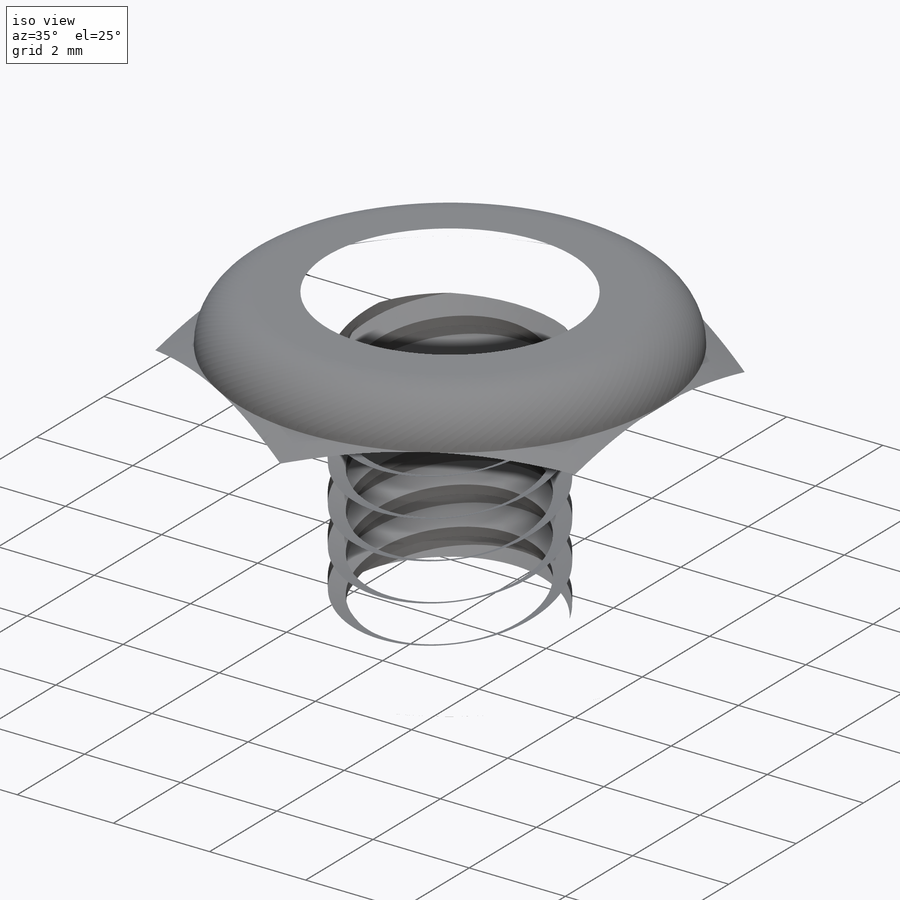
[diagram: iso view]
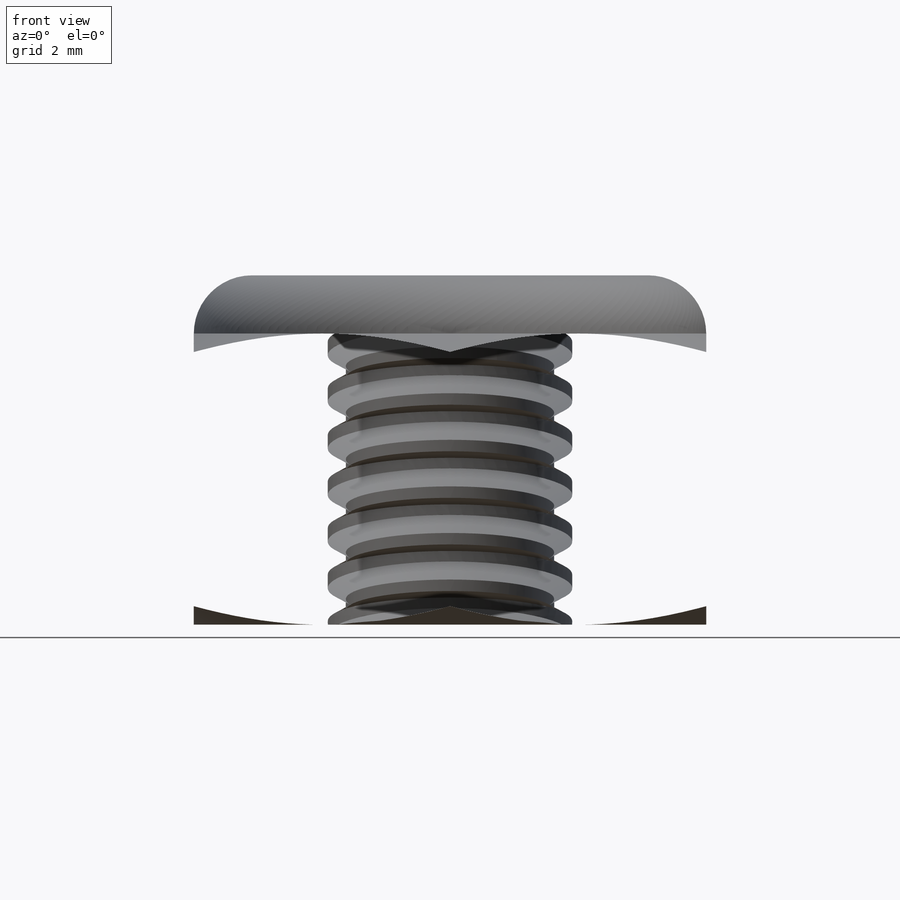
[diagram: front view]
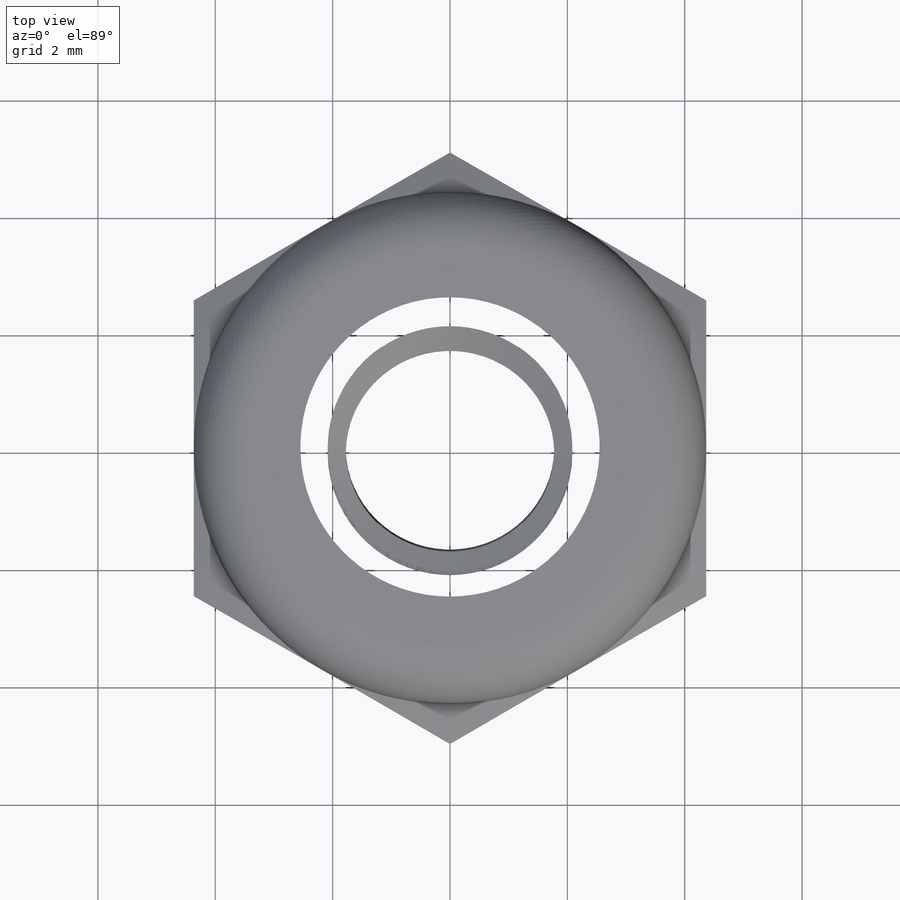
[diagram: top view]
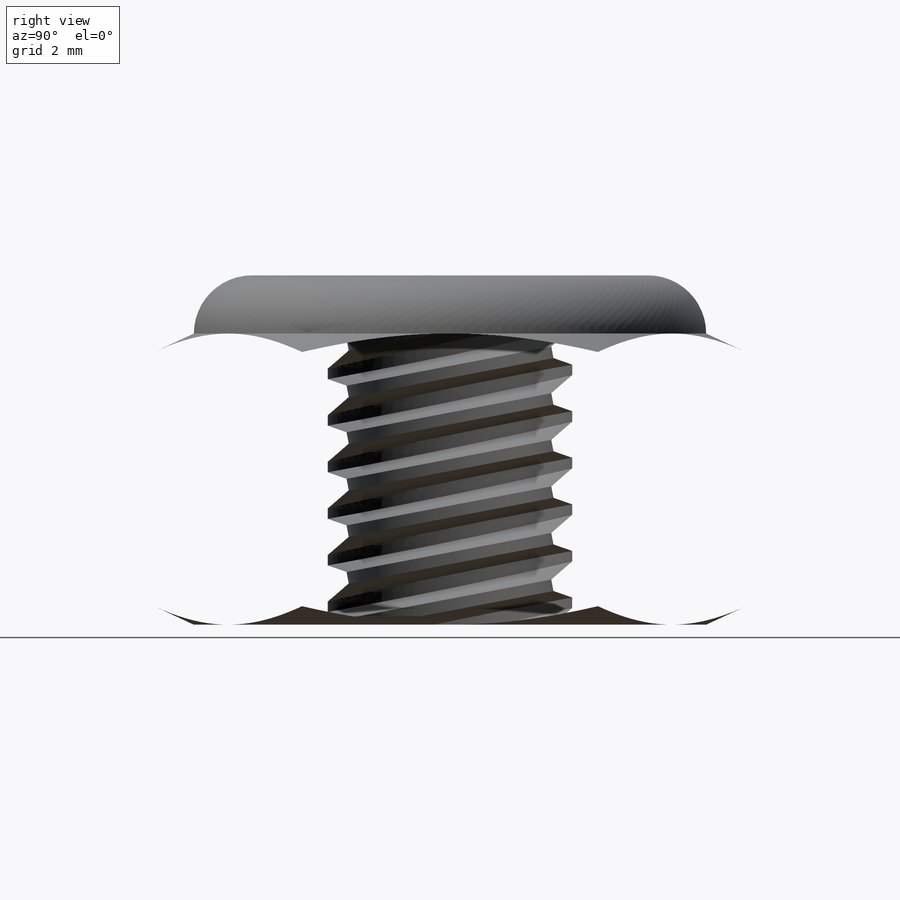
[diagram: right view]
SOLIDWORKS PART (.sldprt)
format: sldprt  version: not decoded by parser v0  size: 779,776 bytes
history: native  units: mm
features: sketch x7, cut_revolve x4, revolve x2, material x1, extrude x1, pattern_linear x1, boolean_combine x1 (+13 scaffold rows collapsed)
feature tree (30):
  scaffold x13  (default folders/planes/origin — collapsed)
  material  "Material <not specified>"
  sketch  "Sketch1"  dims[Hex Flats=~8.73125mm]
  extrude  "Extrude1"  Depth=5.953125mm Height=5.953125mm
  sketch  "Sketch2"  dims[Thread Dia=4.1656mm]
  revolve  "Revolve1"  Angle=360deg
  sketch  "Sketch3"  dims[c1.D1=~0.099219mm c1.D2=~0.198437mm c1.Thread Pitch=~0.79375mm c1.D4=~10.975183mm c2.D4=60.0deg c2.D5=~0.79375mm]
  cut_revolve  "Cut-Revolve1"  Angle=360deg
  pattern_linear  "LPattern1"  Count1=8 Count2=2 Spacing1=0.79375mm Spacing2=0.79375mm
  sketch  "Sketch4"  dims[c1.D1=~7.974547mm c2.D1=25.0deg]
  cut_revolve  "Cut-Revolve2"  Angle=360deg
  boolean_combine  "Combine1"
  sketch  "Sketch5"  dims[c1.D1=~25.750443mm c2.D1=25.0deg c2.D2=1.27mm c2.D3=~5.953125mm c2.D4=~0.992188mm]
  cut_revolve  "Cut-Revolve3"  Angle=360deg
  sketch  "Sketch6"  dims[D1=0.1524mm]
  cut_revolve  "Cut-Revolve4"  Angle=360deg
  sketch  "Sketch7"  dims[D1=0.0762mm]
  revolve  "Revolve2"  Angle=360deg
decode coverage: 15 of 16 modeling features carry decoded parameters
note: ~ marks probable driven/reference dimensions
note: suppression state not decoded; provenance and decode notes live in map.json
